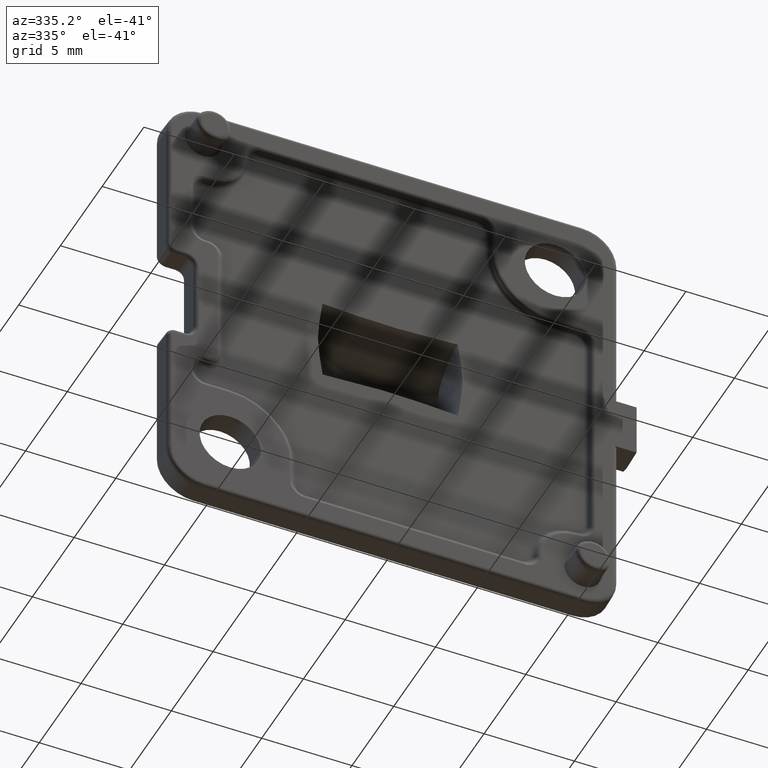
[diagram: clean part render]
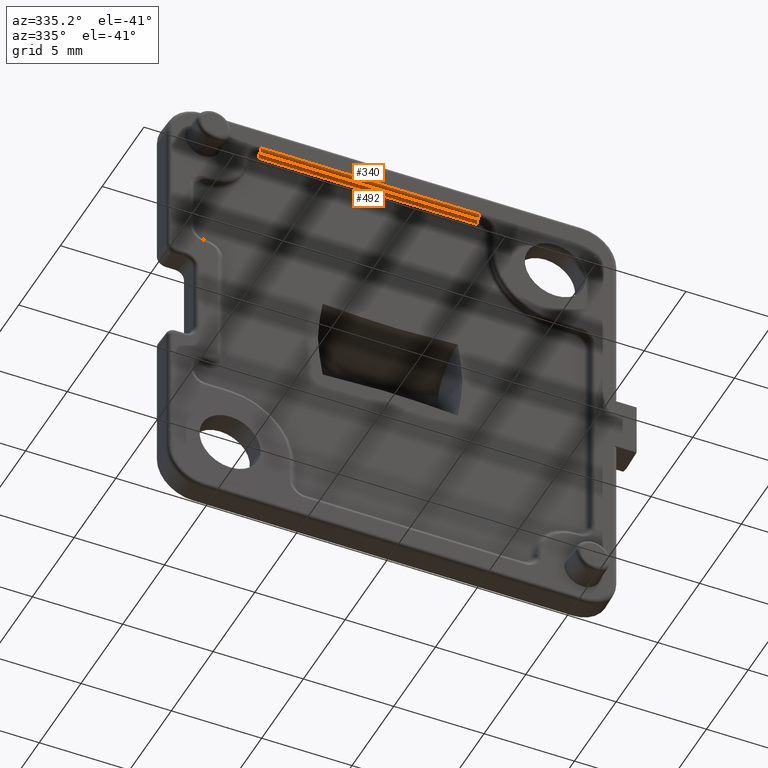
[diagram: same view with one multi-face feature highlighted, each face labeled with its STEP entity id]
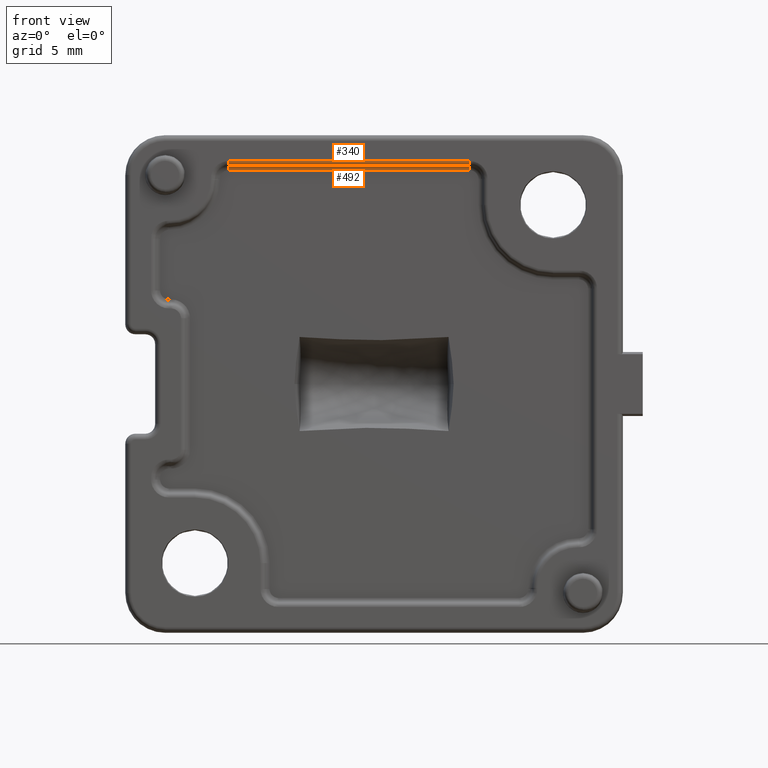
[diagram: same view with one multi-face feature highlighted, each face labeled with its STEP entity id]
A machine part, auxiliary view. The highlighted faces form ONE feature: a constant-radius fillet chain: 2 tangent blend faces with common blend radius 0.25 mm. The faces share edges in the B-rep.
A second angle (front view) of the same feature is appended — it is thin or edge-on in the first view.
Their STEP definitions:
[1] entity #492 (Cylinder):
#77 = VERTEX_POINT ( 'NONE', #1403 ) ;
#107 = CIRCLE ( 'NONE', #4330, 0.2500000000000002200 ) ;
#492 = ADVANCED_FACE ( 'NONE', ( #1054 ), #5420, .F. ) ;
#614 = CIRCLE ( 'NONE', #6737, 0.2500000000000002200 ) ;
#687 = LINE ( 'NONE', #1623, #6530 ) ;
#860 = DIRECTION ( 'NONE',  ( -1.000000000000000000, 0.0000000000000000000, 1.284980352575412500E-016 ) ) ;
#1054 = FACE_OUTER_BOUND ( 'NONE', #4809, .T. ) ;
#1094 = ORIENTED_EDGE ( 'NONE', *, *, #2028, .T. ) ;
#1398 = EDGE_CURVE ( 'NONE', #6672, #4011, #687, .T. ) ;
#1403 = CARTESIAN_POINT ( 'NONE',  ( 4.798375703292115300, -0.4000000000000000200, 10.74810157545070600 ) ) ;
#1623 = CARTESIAN_POINT ( 'NONE',  ( -8.999999999999996400, -0.5499999999999999300, 10.97723036019849900 ) ) ;
#1689 = ORIENTED_EDGE ( 'NONE', *, *, #6613, .F. ) ;
#2028 = EDGE_CURVE ( 'NONE', #4011, #4747, #107, .T. ) ;
#2053 = CARTESIAN_POINT ( 'NONE',  ( -8.999999999999996400, -0.4000000000000000200, 10.74810157545070800 ) ) ;
#2330 = DIRECTION ( 'NONE',  ( 0.0000000000000000000, 0.0000000000000000000, 1.000000000000000000 ) ) ;
#2465 = VECTOR ( 'NONE', #860, 1000.000000000000000 ) ;
#2657 = CARTESIAN_POINT ( 'NONE',  ( 4.798375703292115300, -0.5499999999999998200, 10.97723036019849700 ) ) ;
#2709 = CARTESIAN_POINT ( 'NONE',  ( 4.798375703292115300, -0.6500000000000000200, 10.74810157545070600 ) ) ;
#2808 = DIRECTION ( 'NONE',  ( -1.000000000000000000, 0.0000000000000000000, 0.0000000000000000000 ) ) ;
#3293 = DIRECTION ( 'NONE',  ( 0.0000000000000000000, 0.0000000000000000000, 1.000000000000000000 ) ) ;
#3973 = LINE ( 'NONE', #2053, #2465 ) ;
#4011 = VERTEX_POINT ( 'NONE', #6365 ) ;
#4273 = EDGE_CURVE ( 'NONE', #6672, #77, #614, .T. ) ;
#4312 = CARTESIAN_POINT ( 'NONE',  ( -7.298375703292116200, -0.4000000000000000200, 10.74810157545070800 ) ) ;
#4330 = AXIS2_PLACEMENT_3D ( 'NONE', #6122, #2808, #6659 ) ;
#4711 = ORIENTED_EDGE ( 'NONE', *, *, #4273, .F. ) ;
#4747 = VERTEX_POINT ( 'NONE', #4312 ) ;
#4809 = EDGE_LOOP ( 'NONE', ( #4711, #4925, #1094, #1689 ) ) ;
#4925 = ORIENTED_EDGE ( 'NONE', *, *, #1398, .T. ) ;
#5058 = AXIS2_PLACEMENT_3D ( 'NONE', #7294, #6109, #2330 ) ;
#5420 = CYLINDRICAL_SURFACE ( 'NONE', #5058, 0.2500000000000002200 ) ;
#5569 = DIRECTION ( 'NONE',  ( -1.000000000000000000, 0.0000000000000000000, 1.284980352575412500E-016 ) ) ;
#6109 = DIRECTION ( 'NONE',  ( -1.000000000000000000, 0.0000000000000000000, 1.284980352575412500E-016 ) ) ;
#6122 = CARTESIAN_POINT ( 'NONE',  ( -7.298375703292116200, -0.6500000000000001300, 10.74810157545070800 ) ) ;
#6365 = CARTESIAN_POINT ( 'NONE',  ( -7.298375703292116200, -0.5499999999999989300, 10.97723036019849900 ) ) ;
#6530 = VECTOR ( 'NONE', #5569, 1000.000000000000000 ) ;
#6574 = DIRECTION ( 'NONE',  ( -1.000000000000000000, 0.0000000000000000000, 0.0000000000000000000 ) ) ;
#6613 = EDGE_CURVE ( 'NONE', #77, #4747, #3973, .T. ) ;
#6659 = DIRECTION ( 'NONE',  ( 0.0000000000000000000, 0.0000000000000000000, 1.000000000000000000 ) ) ;
#6672 = VERTEX_POINT ( 'NONE', #2657 ) ;
#6737 = AXIS2_PLACEMENT_3D ( 'NONE', #2709, #6574, #3293 ) ;
#7294 = CARTESIAN_POINT ( 'NONE',  ( -8.999999999999996400, -0.6500000000000000200, 10.74810157545070800 ) ) ;
[2] entity #340 (Cylinder):
#340 = ADVANCED_FACE ( 'NONE', ( #6612 ), #6448, .T. ) ;
#415 = VERTEX_POINT ( 'NONE', #6418 ) ;
#507 = DIRECTION ( 'NONE',  ( -6.938893903907228400E-015, -1.000000000000000000, 0.0000000000000000000 ) ) ;
#632 = EDGE_CURVE ( 'NONE', #415, #6368, #4734, .T. ) ;
#687 = LINE ( 'NONE', #1623, #6530 ) ;
#890 = AXIS2_PLACEMENT_3D ( 'NONE', #7281, #3982, #507 ) ;
#954 = CARTESIAN_POINT ( 'NONE',  ( -12.00000000000000200, -0.6999999999999999600, 11.20635914494629000 ) ) ;
#1398 = EDGE_CURVE ( 'NONE', #6672, #4011, #687, .T. ) ;
#1470 = EDGE_CURVE ( 'NONE', #4011, #415, #4918, .T. ) ;
#1598 = CARTESIAN_POINT ( 'NONE',  ( 4.798375703292115300, -0.4499999999999999000, 11.20635914494628900 ) ) ;
#1623 = CARTESIAN_POINT ( 'NONE',  ( -8.999999999999996400, -0.5499999999999999300, 10.97723036019849900 ) ) ;
#1718 = VECTOR ( 'NONE', #3909, 1000.000000000000000 ) ;
#1877 = ORIENTED_EDGE ( 'NONE', *, *, #1470, .F. ) ;
#2064 = ORIENTED_EDGE ( 'NONE', *, *, #1398, .F. ) ;
#2196 = DIRECTION ( 'NONE',  ( 1.387778780781445700E-014, -1.000000000000000000, 0.0000000000000000000 ) ) ;
#2514 = EDGE_CURVE ( 'NONE', #6672, #6368, #3256, .T. ) ;
#2657 = CARTESIAN_POINT ( 'NONE',  ( 4.798375703292115300, -0.5499999999999998200, 10.97723036019849700 ) ) ;
#3256 = CIRCLE ( 'NONE', #4660, 0.2500000000000000000 ) ;
#3909 = DIRECTION ( 'NONE',  ( 1.000000000000000000, -0.0000000000000000000, -1.284980352575412500E-016 ) ) ;
#3982 = DIRECTION ( 'NONE',  ( -1.000000000000000000, 6.938893903907222100E-015, 7.570953941410094200E-016 ) ) ;
#4011 = VERTEX_POINT ( 'NONE', #6365 ) ;
#4346 = AXIS2_PLACEMENT_3D ( 'NONE', #6334, #5807, #5754 ) ;
#4660 = AXIS2_PLACEMENT_3D ( 'NONE', #1598, #5548, #2196 ) ;
#4734 = LINE ( 'NONE', #954, #1718 ) ;
#4918 = CIRCLE ( 'NONE', #890, 0.2500000000000000000 ) ;
#5548 = DIRECTION ( 'NONE',  ( -1.000000000000000000, -1.387778780781440900E-014, 6.056763153128102200E-015 ) ) ;
#5569 = DIRECTION ( 'NONE',  ( -1.000000000000000000, 0.0000000000000000000, 1.284980352575412500E-016 ) ) ;
#5754 = DIRECTION ( 'NONE',  ( 0.0000000000000000000, 0.0000000000000000000, 1.000000000000000000 ) ) ;
#5807 = DIRECTION ( 'NONE',  ( -1.000000000000000000, 0.0000000000000000000, 1.284980352575412500E-016 ) ) ;
#5833 = ORIENTED_EDGE ( 'NONE', *, *, #632, .F. ) ;
#5869 = ORIENTED_EDGE ( 'NONE', *, *, #2514, .T. ) ;
#6290 = CARTESIAN_POINT ( 'NONE',  ( 4.798375703292118800, -0.6999999999999999600, 11.20635914494629000 ) ) ;
#6334 = CARTESIAN_POINT ( 'NONE',  ( -8.999999999999996400, -0.4500000000000000100, 11.20635914494629200 ) ) ;
#6365 = CARTESIAN_POINT ( 'NONE',  ( -7.298375703292116200, -0.5499999999999989300, 10.97723036019849900 ) ) ;
#6368 = VERTEX_POINT ( 'NONE', #6290 ) ;
#6418 = CARTESIAN_POINT ( 'NONE',  ( -7.298375703292117000, -0.6999999999999999600, 11.20635914494629200 ) ) ;
#6448 = CYLINDRICAL_SURFACE ( 'NONE', #4346, 0.2500000000000002200 ) ;
#6530 = VECTOR ( 'NONE', #5569, 1000.000000000000000 ) ;
#6612 = FACE_OUTER_BOUND ( 'NONE', #6736, .T. ) ;
#6672 = VERTEX_POINT ( 'NONE', #2657 ) ;
#6736 = EDGE_LOOP ( 'NONE', ( #5869, #5833, #1877, #2064 ) ) ;
#7281 = CARTESIAN_POINT ( 'NONE',  ( -7.298375703292115300, -0.4499999999999995700, 11.20635914494629000 ) ) ;